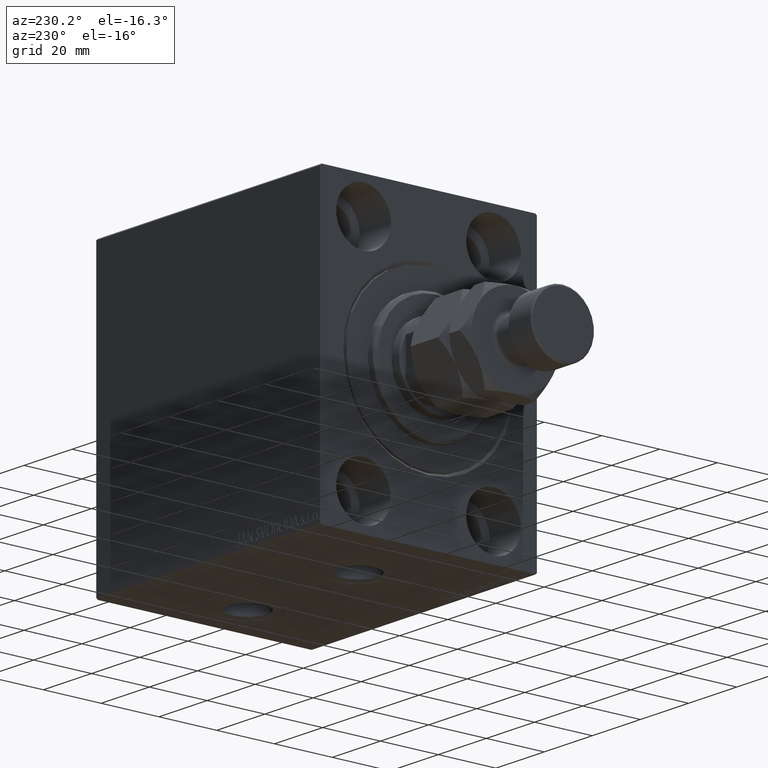
[diagram: clean part render]
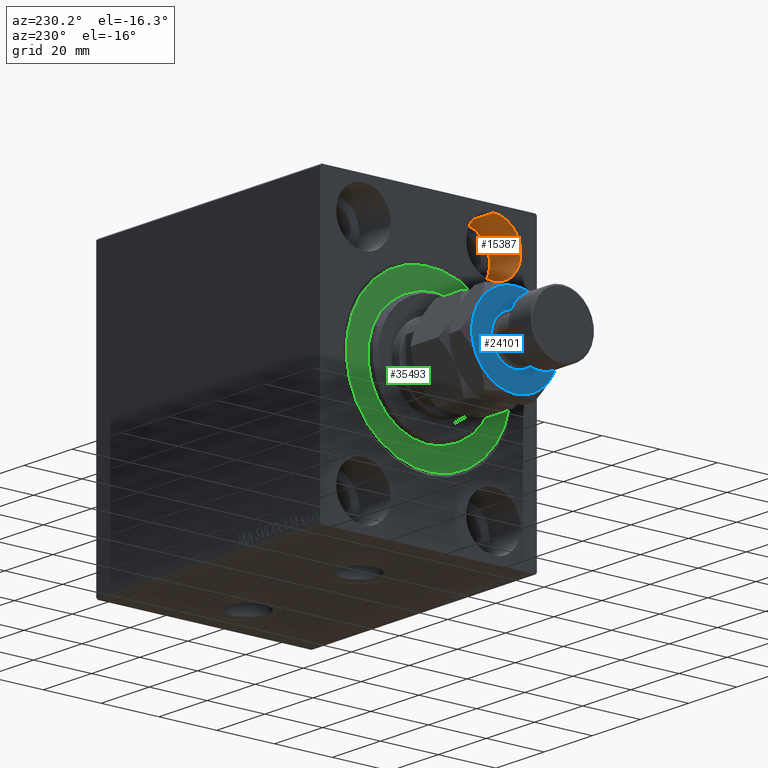
[diagram: same view with three faces highlighted in distinct colors, each labeled with its STEP entity id]
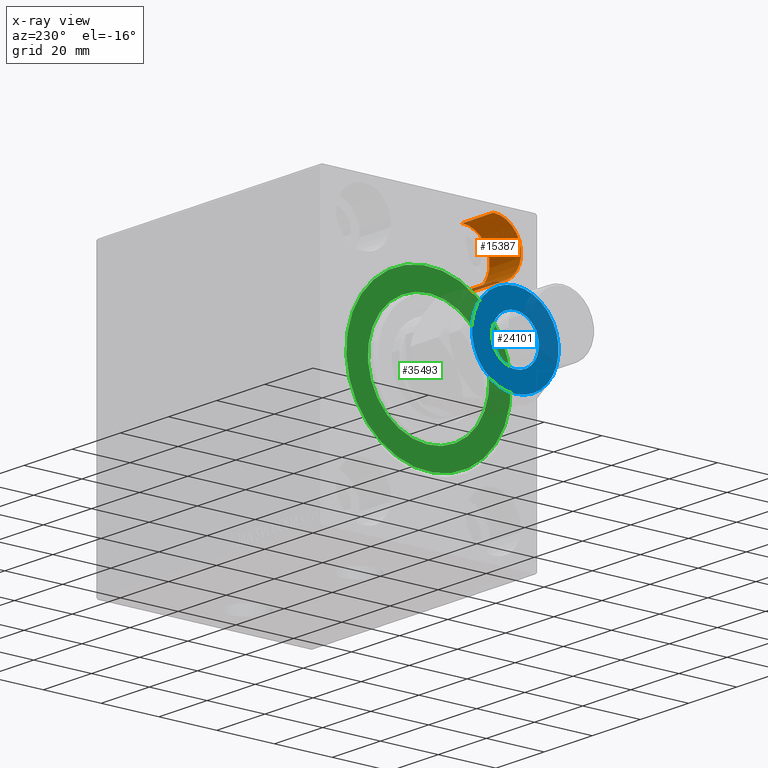
[diagram: x-ray of the same camera — body ghosted, the three highlighted faces saturated]
A machine part, auxiliary view with three faces highlighted in distinct colors.
The next image is the same camera in x-ray (body ghosted, the three faces saturated) — at least one of them is partly hidden behind the body in this view.
Their STEP definitions:

[orange] entity #15387 — the highlighted cylindrical surface (edge-blend (fillet) strip) has radius 9.5 mm, axis along (-1, -0, -0).
#131 = CARTESIAN_POINT ( 'NONE',  ( 13.00000000000000000, -22.49999999999999645, 28.49999999999998934 ) ) ;
#5956 = CARTESIAN_POINT ( 'NONE',  ( 13.00000000000000000, -22.49999999999999645, 37.99999999999999289 ) ) ;
#6091 = VERTEX_POINT ( 'NONE', #6981 ) ;
#6981 = CARTESIAN_POINT ( 'NONE',  ( 0.000000000000000000, -22.49999999999999645, 28.49999999999998934 ) ) ;
#7453 = CARTESIAN_POINT ( 'NONE',  ( 13.00000000000000000, -22.49999999999999645, 47.49999999999999289 ) ) ;
#9353 = DIRECTION ( 'NONE',  ( -1.000000000000000000, 0.000000000000000000, 0.000000000000000000 ) ) ;
#9961 = VERTEX_POINT ( 'NONE', #131 ) ;
#10418 = EDGE_CURVE ( 'NONE', #26664, #18293, #25500, .T. ) ;
#15387 = ADVANCED_FACE ( 'NONE', ( #31380 ), #20053, .F. ) ;
#15973 = CARTESIAN_POINT ( 'NONE',  ( 13.00000000000000000, -22.49999999999999645, 28.49999999999998934 ) ) ;
#16434 = LINE ( 'NONE', #15973, #39417 ) ;
#18293 = VERTEX_POINT ( 'NONE', #45644 ) ;
#19958 = DIRECTION ( 'NONE',  ( -1.000000000000000000, 0.000000000000000000, 0.000000000000000000 ) ) ;
#20053 = CYLINDRICAL_SURFACE ( 'NONE', #30374, 9.500000000000001776 ) ;
#20180 = CARTESIAN_POINT ( 'NONE',  ( 0.000000000000000000, -22.49999999999999645, 37.99999999999999289 ) ) ;
#20687 = ORIENTED_EDGE ( 'NONE', *, *, #24796, .T. ) ;
#21421 = VECTOR ( 'NONE', #39601, 1000.000000000000000 ) ;
#23459 = DIRECTION ( 'NONE',  ( 0.000000000000000000, 0.000000000000000000, 1.000000000000000000 ) ) ;
#23847 = EDGE_CURVE ( 'NONE', #9961, #6091, #16434, .T. ) ;
#24796 = EDGE_CURVE ( 'NONE', #6091, #18293, #32794, .T. ) ;
#25500 = LINE ( 'NONE', #7453, #21421 ) ;
#26072 = ORIENTED_EDGE ( 'NONE', *, *, #27025, .F. ) ;
#26664 = VERTEX_POINT ( 'NONE', #33033 ) ;
#27025 = EDGE_CURVE ( 'NONE', #9961, #26664, #42436, .T. ) ;
#27681 = ORIENTED_EDGE ( 'NONE', *, *, #10418, .F. ) ;
#30374 = AXIS2_PLACEMENT_3D ( 'NONE', #5956, #31608, #45700 ) ;
#31062 = DIRECTION ( 'NONE',  ( 0.000000000000000000, 0.000000000000000000, 1.000000000000000000 ) ) ;
#31380 = FACE_OUTER_BOUND ( 'NONE', #36439, .T. ) ;
#31608 = DIRECTION ( 'NONE',  ( -1.000000000000000000, -0.000000000000000000, -0.000000000000000000 ) ) ;
#32396 = ORIENTED_EDGE ( 'NONE', *, *, #23847, .T. ) ;
#32794 = CIRCLE ( 'NONE', #38727, 9.500000000000001776 ) ;
#32855 = AXIS2_PLACEMENT_3D ( 'NONE', #41042, #9353, #23459 ) ;
#33033 = CARTESIAN_POINT ( 'NONE',  ( 13.00000000000000000, -22.49999999999999645, 47.49999999999999289 ) ) ;
#36439 = EDGE_LOOP ( 'NONE', ( #26072, #32396, #20687, #27681 ) ) ;
#37050 = DIRECTION ( 'NONE',  ( -1.000000000000000000, -0.000000000000000000, -0.000000000000000000 ) ) ;
#38727 = AXIS2_PLACEMENT_3D ( 'NONE', #20180, #19958, #31062 ) ;
#39417 = VECTOR ( 'NONE', #37050, 1000.000000000000000 ) ;
#39601 = DIRECTION ( 'NONE',  ( -1.000000000000000000, -0.000000000000000000, -0.000000000000000000 ) ) ;
#41042 = CARTESIAN_POINT ( 'NONE',  ( 13.00000000000000000, -22.49999999999999645, 37.99999999999999289 ) ) ;
#42436 = CIRCLE ( 'NONE', #32855, 9.500000000000001776 ) ;
#45644 = CARTESIAN_POINT ( 'NONE',  ( 0.000000000000000000, -22.49999999999999645, 47.49999999999999289 ) ) ;
#45700 = DIRECTION ( 'NONE',  ( 0.000000000000000000, 0.000000000000000000, 1.000000000000000000 ) ) ;

[blue] entity #24101 — the highlighted planar face has unit normal (-1, 0, 0).
#1295 = CARTESIAN_POINT ( 'NONE',  ( 0.000000000000000000, 0.000000000000000000, 25.00000000000000000 ) ) ;
#1445 = CIRCLE ( 'NONE', #22122, 14.99999999999999645 ) ;
#1902 = CARTESIAN_POINT ( 'NONE',  ( -8.200000000000001066, 1.004210375300829674E-15, 25.00000000000000000 ) ) ;
#3086 = DIRECTION ( 'NONE',  ( 1.000000000000000000, 0.000000000000000000, 0.000000000000000000 ) ) ;
#3951 = EDGE_LOOP ( 'NONE', ( #21002, #7524 ) ) ;
#4947 = AXIS2_PLACEMENT_3D ( 'NONE', #1295, #22321, #5453 ) ;
#5105 = DIRECTION ( 'NONE',  ( 1.000000000000000000, 0.000000000000000000, 0.000000000000000000 ) ) ;
#5453 = DIRECTION ( 'NONE',  ( 1.000000000000000000, 0.000000000000000000, 0.000000000000000000 ) ) ;
#6452 = DIRECTION ( 'NONE',  ( -0.000000000000000000, 0.000000000000000000, -1.000000000000000000 ) ) ;
#7155 = CARTESIAN_POINT ( 'NONE',  ( 0.000000000000000000, 0.000000000000000000, 25.00000000000000000 ) ) ;
#7390 = EDGE_CURVE ( 'NONE', #41990, #37079, #1445, .T. ) ;
#7391 = VERTEX_POINT ( 'NONE', #11722 ) ;
#7524 = ORIENTED_EDGE ( 'NONE', *, *, #29797, .T. ) ;
#8311 = DIRECTION ( 'NONE',  ( 0.000000000000000000, -0.000000000000000000, 1.000000000000000000 ) ) ;
#8532 = VERTEX_POINT ( 'NONE', #20880 ) ;
#9046 = EDGE_CURVE ( 'NONE', #37079, #23125, #19197, .T. ) ;
#9142 = AXIS2_PLACEMENT_3D ( 'NONE', #30262, #8311, #29582 ) ;
#9785 = CARTESIAN_POINT ( 'NONE',  ( 0.000000000000000000, 0.000000000000000000, 25.00000000000000000 ) ) ;
#10626 = PLANE ( 'NONE',  #43095 ) ;
#11169 = CARTESIAN_POINT ( 'NONE',  ( 0.000000000000000000, 0.000000000000000000, 25.00000000000000000 ) ) ;
#11722 = CARTESIAN_POINT ( 'NONE',  ( -7.500000000000000000, 12.99038105676657651, 25.00000000000000000 ) ) ;
#12040 = CARTESIAN_POINT ( 'NONE',  ( 14.99999999999999645, 1.502314598737159426E-15, 25.00000000000000000 ) ) ;
#12243 = EDGE_CURVE ( 'NONE', #7391, #16769, #30286, .T. ) ;
#13219 = VERTEX_POINT ( 'NONE', #1902 ) ;
#14766 = AXIS2_PLACEMENT_3D ( 'NONE', #11169, #25287, #18559 ) ;
#15230 = FACE_BOUND ( 'NONE', #3951, .T. ) ;
#16769 = VERTEX_POINT ( 'NONE', #24391 ) ;
#17937 = CARTESIAN_POINT ( 'NONE',  ( 7.499999999999998224, 12.99038105676657651, 25.00000000000000000 ) ) ;
#18431 = CIRCLE ( 'NONE', #20637, 8.200000000000001066 ) ;
#18559 = DIRECTION ( 'NONE',  ( 1.000000000000000000, 0.000000000000000000, 0.000000000000000000 ) ) ;
#19197 = CIRCLE ( 'NONE', #42816, 14.99999999999999645 ) ;
#19736 = ORIENTED_EDGE ( 'NONE', *, *, #7390, .T. ) ;
#20376 = DIRECTION ( 'NONE',  ( 0.000000000000000000, -0.000000000000000000, 1.000000000000000000 ) ) ;
#20637 = AXIS2_PLACEMENT_3D ( 'NONE', #34001, #6452, #41381 ) ;
#20880 = CARTESIAN_POINT ( 'NONE',  ( 8.200000000000001066, 0.000000000000000000, 25.00000000000000000 ) ) ;
#20930 = ORIENTED_EDGE ( 'NONE', *, *, #45364, .T. ) ;
#21002 = ORIENTED_EDGE ( 'NONE', *, *, #44477, .T. ) ;
#21251 = DIRECTION ( 'NONE',  ( 0.000000000000000000, -0.000000000000000000, 1.000000000000000000 ) ) ;
#21436 = DIRECTION ( 'NONE',  ( 0.000000000000000000, -0.000000000000000000, 1.000000000000000000 ) ) ;
#22122 = AXIS2_PLACEMENT_3D ( 'NONE', #31871, #21436, #42715 ) ;
#22321 = DIRECTION ( 'NONE',  ( 0.000000000000000000, 0.000000000000000000, 1.000000000000000000 ) ) ;
#23125 = VERTEX_POINT ( 'NONE', #12040 ) ;
#23511 = CARTESIAN_POINT ( 'NONE',  ( -7.500000000000000888, -12.99038105676657828, 25.00000000000000000 ) ) ;
#24101 = ADVANCED_FACE ( 'NONE', ( #15230, #29344 ), #10626, .T. ) ;
#24108 = EDGE_CURVE ( 'NONE', #26751, #7391, #32055, .T. ) ;
#24391 = CARTESIAN_POINT ( 'NONE',  ( -14.99999999999999645, 0.000000000000000000, 25.00000000000000000 ) ) ;
#25287 = DIRECTION ( 'NONE',  ( 0.000000000000000000, -0.000000000000000000, 1.000000000000000000 ) ) ;
#25893 = DIRECTION ( 'NONE',  ( 1.000000000000000000, 0.000000000000000000, -0.000000000000000000 ) ) ;
#26122 = ORIENTED_EDGE ( 'NONE', *, *, #12243, .T. ) ;
#26372 = DIRECTION ( 'NONE',  ( 0.000000000000000000, -0.000000000000000000, 1.000000000000000000 ) ) ;
#26637 = ORIENTED_EDGE ( 'NONE', *, *, #32363, .T. ) ;
#26751 = VERTEX_POINT ( 'NONE', #17937 ) ;
#29344 = FACE_OUTER_BOUND ( 'NONE', #36255, .T. ) ;
#29582 = DIRECTION ( 'NONE',  ( 1.000000000000000000, 0.000000000000000000, 0.000000000000000000 ) ) ;
#29604 = CARTESIAN_POINT ( 'NONE',  ( 0.000000000000000000, 0.000000000000000000, 25.00000000000000000 ) ) ;
#29797 = EDGE_CURVE ( 'NONE', #13219, #8532, #36645, .T. ) ;
#30262 = CARTESIAN_POINT ( 'NONE',  ( 0.000000000000000000, 0.000000000000000000, 25.00000000000000000 ) ) ;
#30286 = CIRCLE ( 'NONE', #45144, 14.99999999999999645 ) ;
#30790 = CIRCLE ( 'NONE', #4947, 14.99999999999999645 ) ;
#31871 = CARTESIAN_POINT ( 'NONE',  ( 0.000000000000000000, 0.000000000000000000, 25.00000000000000000 ) ) ;
#32055 = CIRCLE ( 'NONE', #9142, 14.99999999999999645 ) ;
#32363 = EDGE_CURVE ( 'NONE', #23125, #26751, #30790, .T. ) ;
#34001 = CARTESIAN_POINT ( 'NONE',  ( 0.000000000000000000, 0.000000000000000000, 25.00000000000000000 ) ) ;
#35920 = AXIS2_PLACEMENT_3D ( 'NONE', #9785, #38011, #3086 ) ;
#36255 = EDGE_LOOP ( 'NONE', ( #38537, #26637, #43225, #26122, #20930, #19736 ) ) ;
#36645 = CIRCLE ( 'NONE', #35920, 8.200000000000001066 ) ;
#37079 = VERTEX_POINT ( 'NONE', #38290 ) ;
#37984 = CARTESIAN_POINT ( 'NONE',  ( 0.000000000000000000, 0.000000000000000000, 25.00000000000000000 ) ) ;
#38011 = DIRECTION ( 'NONE',  ( -0.000000000000000000, 0.000000000000000000, -1.000000000000000000 ) ) ;
#38290 = CARTESIAN_POINT ( 'NONE',  ( 7.500000000000001776, -12.99038105676657473, 25.00000000000000000 ) ) ;
#38537 = ORIENTED_EDGE ( 'NONE', *, *, #9046, .T. ) ;
#41381 = DIRECTION ( 'NONE',  ( 1.000000000000000000, 0.000000000000000000, 0.000000000000000000 ) ) ;
#41668 = DIRECTION ( 'NONE',  ( 1.000000000000000000, 0.000000000000000000, 0.000000000000000000 ) ) ;
#41990 = VERTEX_POINT ( 'NONE', #23511 ) ;
#42715 = DIRECTION ( 'NONE',  ( 1.000000000000000000, 0.000000000000000000, 0.000000000000000000 ) ) ;
#42816 = AXIS2_PLACEMENT_3D ( 'NONE', #29604, #26372, #5105 ) ;
#43095 = AXIS2_PLACEMENT_3D ( 'NONE', #7155, #21251, #25893 ) ;
#43225 = ORIENTED_EDGE ( 'NONE', *, *, #24108, .T. ) ;
#44477 = EDGE_CURVE ( 'NONE', #8532, #13219, #18431, .T. ) ;
#45045 = CIRCLE ( 'NONE', #14766, 14.99999999999999645 ) ;
#45144 = AXIS2_PLACEMENT_3D ( 'NONE', #37984, #20376, #41668 ) ;
#45364 = EDGE_CURVE ( 'NONE', #16769, #41990, #45045, .T. ) ;

[green] entity #35493 — the highlighted planar face has unit normal (1, 0, -0).
#155 = EDGE_LOOP ( 'NONE', ( #33346, #36511 ) ) ;
#3084 = CARTESIAN_POINT ( 'NONE',  ( 0.000000000000000000, 0.000000000000000000, 0.000000000000000000 ) ) ;
#3405 = CIRCLE ( 'NONE', #43255, 21.00000000000000000 ) ;
#4158 = EDGE_CURVE ( 'NONE', #40634, #20418, #33839, .T. ) ;
#4190 = AXIS2_PLACEMENT_3D ( 'NONE', #35020, #45630, #6567 ) ;
#5708 = AXIS2_PLACEMENT_3D ( 'NONE', #3084, #35669, #42587 ) ;
#6021 = DIRECTION ( 'NONE',  ( 1.000000000000000000, -0.000000000000000000, 0.000000000000000000 ) ) ;
#6567 = DIRECTION ( 'NONE',  ( 0.000000000000000000, 0.000000000000000000, 1.000000000000000000 ) ) ;
#8136 = CARTESIAN_POINT ( 'NONE',  ( 0.000000000000000000, 0.000000000000000000, 0.000000000000000000 ) ) ;
#10065 = EDGE_LOOP ( 'NONE', ( #40504, #17535 ) ) ;
#12356 = PLANE ( 'NONE',  #4190 ) ;
#14205 = AXIS2_PLACEMENT_3D ( 'NONE', #34701, #6021, #45092 ) ;
#17535 = ORIENTED_EDGE ( 'NONE', *, *, #20509, .F. ) ;
#18280 = CARTESIAN_POINT ( 'NONE',  ( 0.000000000000000000, 0.000000000000000000, -28.50000000000000000 ) ) ;
#20418 = VERTEX_POINT ( 'NONE', #18280 ) ;
#20509 = EDGE_CURVE ( 'NONE', #43862, #24059, #26050, .T. ) ;
#21717 = CARTESIAN_POINT ( 'NONE',  ( 0.000000000000000000, 0.000000000000000000, 21.00000000000000000 ) ) ;
#22230 = DIRECTION ( 'NONE',  ( 1.000000000000000000, -0.000000000000000000, 0.000000000000000000 ) ) ;
#22751 = AXIS2_PLACEMENT_3D ( 'NONE', #33784, #36792, #43940 ) ;
#24059 = VERTEX_POINT ( 'NONE', #21717 ) ;
#26050 = CIRCLE ( 'NONE', #14205, 21.00000000000000000 ) ;
#29759 = CARTESIAN_POINT ( 'NONE',  ( 0.000000000000000000, 2.571758278209441661E-15, -21.00000000000000000 ) ) ;
#29934 = FACE_BOUND ( 'NONE', #10065, .T. ) ;
#29935 = EDGE_CURVE ( 'NONE', #24059, #43862, #3405, .T. ) ;
#33346 = ORIENTED_EDGE ( 'NONE', *, *, #37528, .F. ) ;
#33784 = CARTESIAN_POINT ( 'NONE',  ( 0.000000000000000000, 0.000000000000000000, 0.000000000000000000 ) ) ;
#33839 = CIRCLE ( 'NONE', #22751, 28.50000000000000000 ) ;
#34701 = CARTESIAN_POINT ( 'NONE',  ( 0.000000000000000000, 0.000000000000000000, 0.000000000000000000 ) ) ;
#35020 = CARTESIAN_POINT ( 'NONE',  ( 0.000000000000000000, 0.000000000000000000, 0.000000000000000000 ) ) ;
#35493 = ADVANCED_FACE ( 'NONE', ( #29934, #44040 ), #12356, .F. ) ;
#35669 = DIRECTION ( 'NONE',  ( -1.000000000000000000, 0.000000000000000000, 0.000000000000000000 ) ) ;
#36511 = ORIENTED_EDGE ( 'NONE', *, *, #4158, .F. ) ;
#36792 = DIRECTION ( 'NONE',  ( -1.000000000000000000, 0.000000000000000000, 0.000000000000000000 ) ) ;
#37528 = EDGE_CURVE ( 'NONE', #20418, #40634, #38942, .T. ) ;
#38942 = CIRCLE ( 'NONE', #5708, 28.50000000000000000 ) ;
#40059 = CARTESIAN_POINT ( 'NONE',  ( 0.000000000000000000, 3.490243377569956456E-15, 28.50000000000000000 ) ) ;
#40504 = ORIENTED_EDGE ( 'NONE', *, *, #29935, .F. ) ;
#40634 = VERTEX_POINT ( 'NONE', #40059 ) ;
#42587 = DIRECTION ( 'NONE',  ( 0.000000000000000000, 0.000000000000000000, 1.000000000000000000 ) ) ;
#43255 = AXIS2_PLACEMENT_3D ( 'NONE', #8136, #22230, #43271 ) ;
#43271 = DIRECTION ( 'NONE',  ( 0.000000000000000000, 0.000000000000000000, -1.000000000000000000 ) ) ;
#43862 = VERTEX_POINT ( 'NONE', #29759 ) ;
#43940 = DIRECTION ( 'NONE',  ( 0.000000000000000000, 0.000000000000000000, 1.000000000000000000 ) ) ;
#44040 = FACE_OUTER_BOUND ( 'NONE', #155, .T. ) ;
#45092 = DIRECTION ( 'NONE',  ( 0.000000000000000000, 0.000000000000000000, -1.000000000000000000 ) ) ;
#45630 = DIRECTION ( 'NONE',  ( -1.000000000000000000, 0.000000000000000000, 0.000000000000000000 ) ) ;